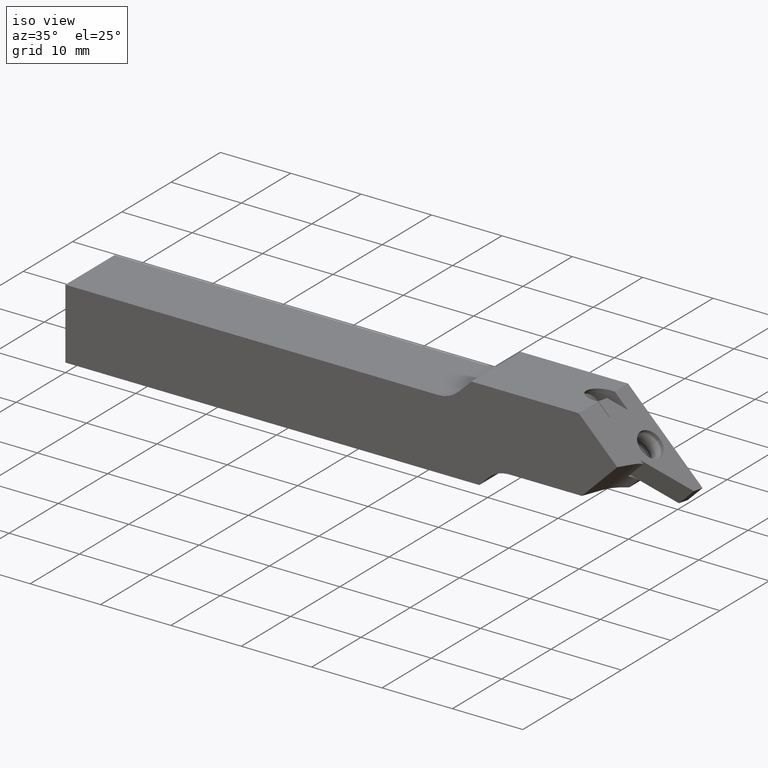
[diagram: clean part render]
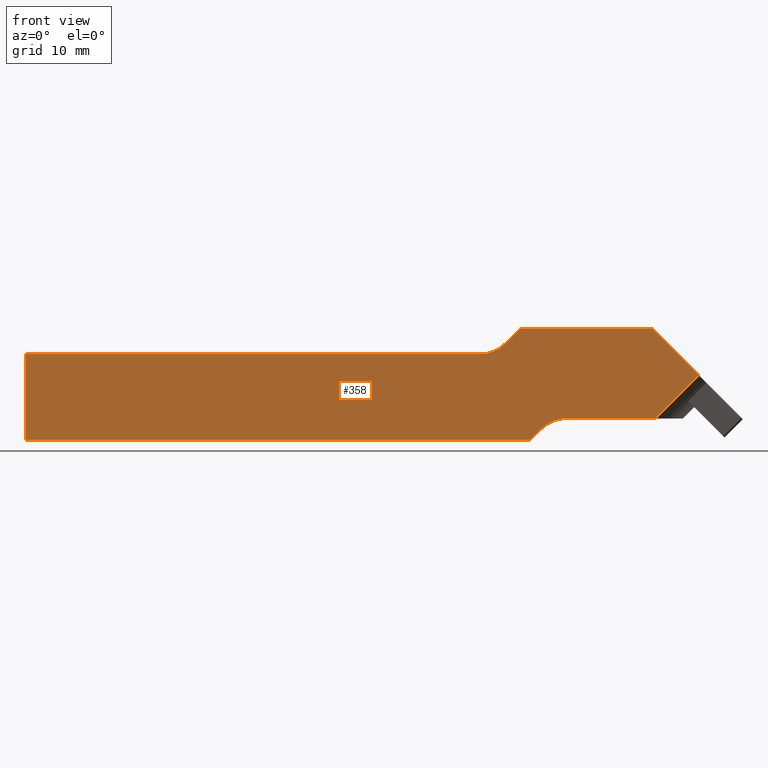
[diagram: tour spotlight — one face highlighted and labeled with its STEP entity id]
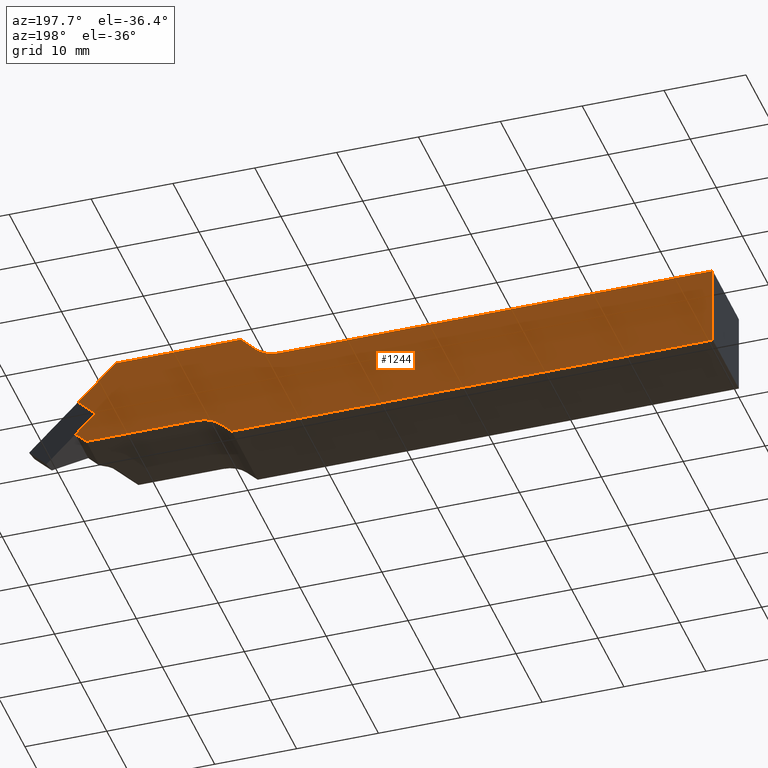
[diagram: tour spotlight — one face highlighted and labeled with its STEP entity id]
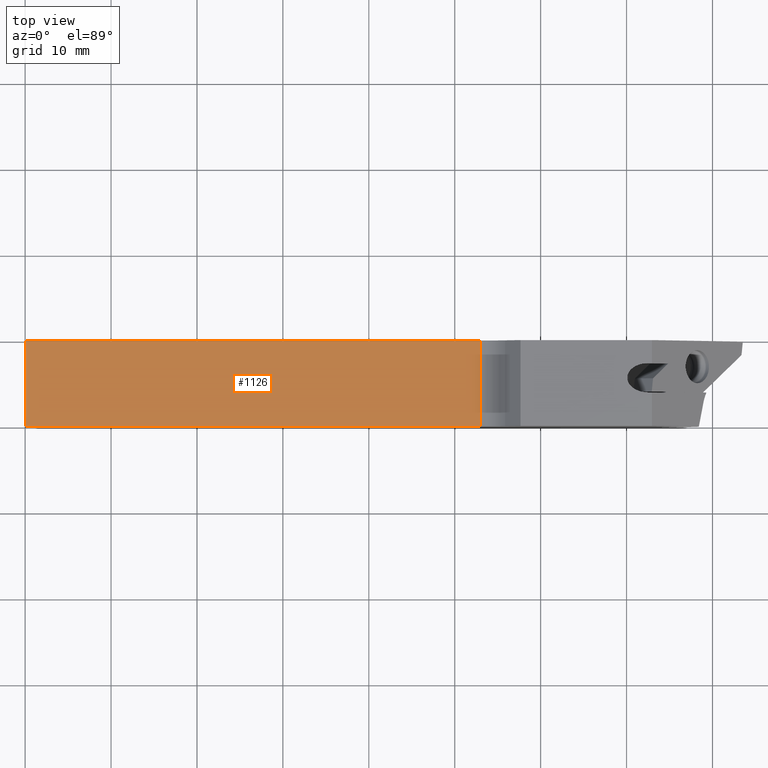
[diagram: tour spotlight — one face highlighted and labeled with its STEP entity id]
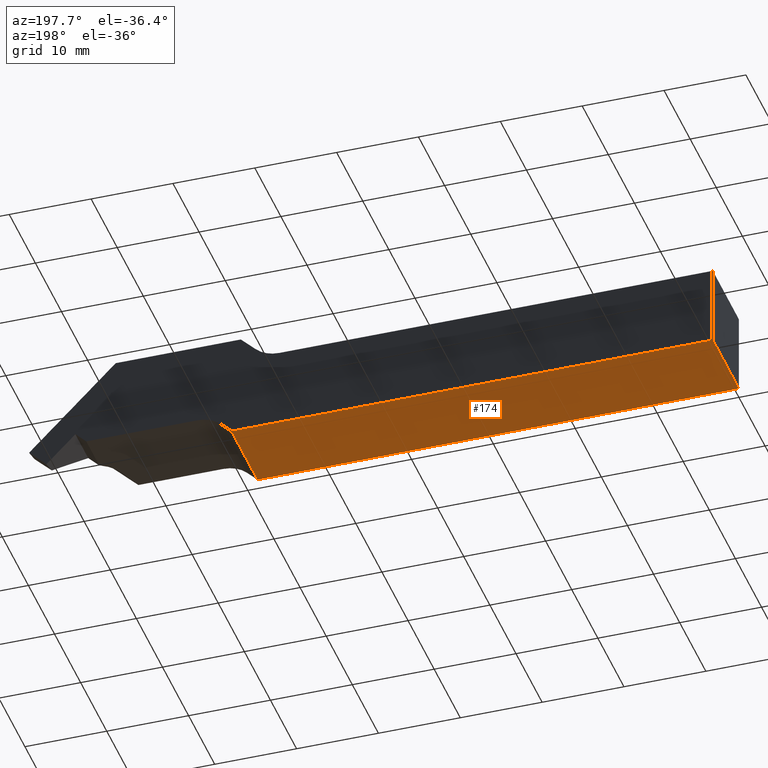
[diagram: tour spotlight — one face highlighted and labeled with its STEP entity id]
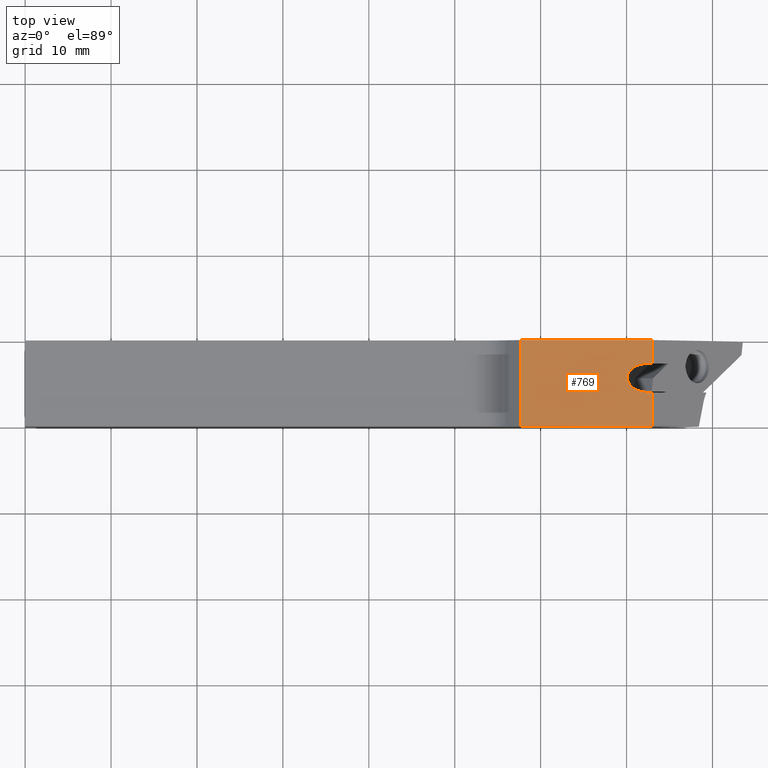
[diagram: tour spotlight — one face highlighted and labeled with its STEP entity id]
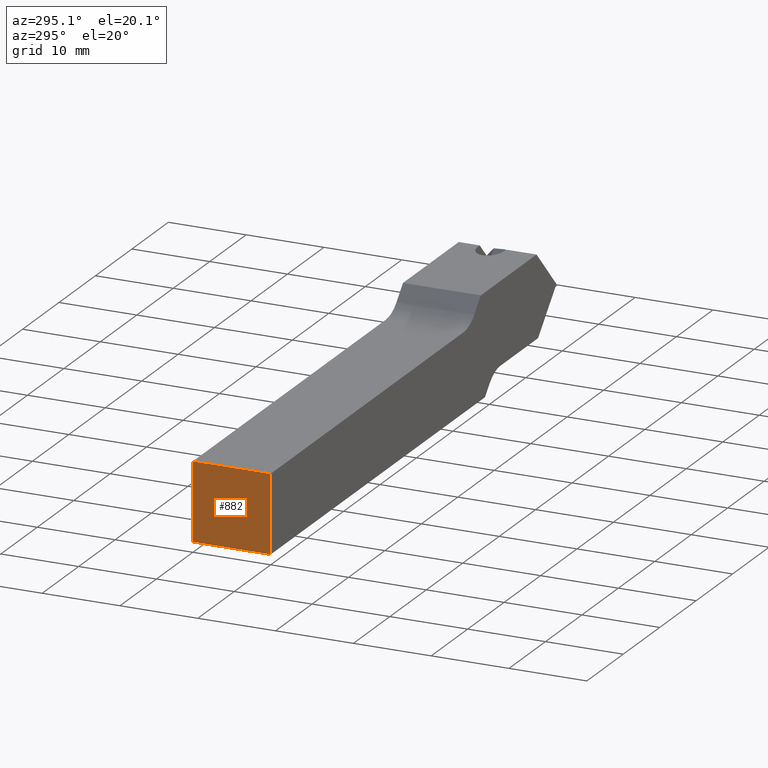
[diagram: tour spotlight — one face highlighted and labeled with its STEP entity id]
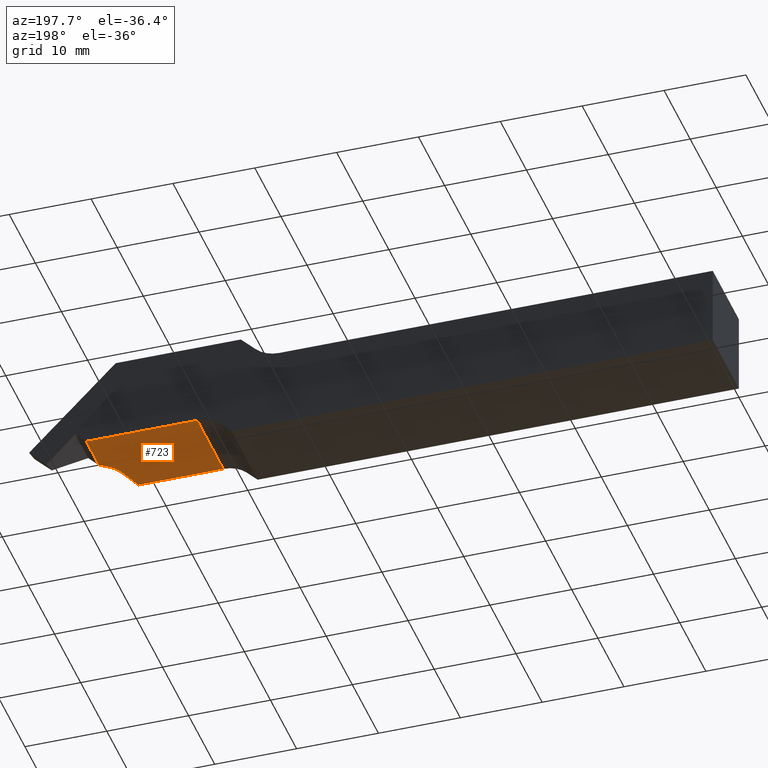
[diagram: tour spotlight — one face highlighted and labeled with its STEP entity id]
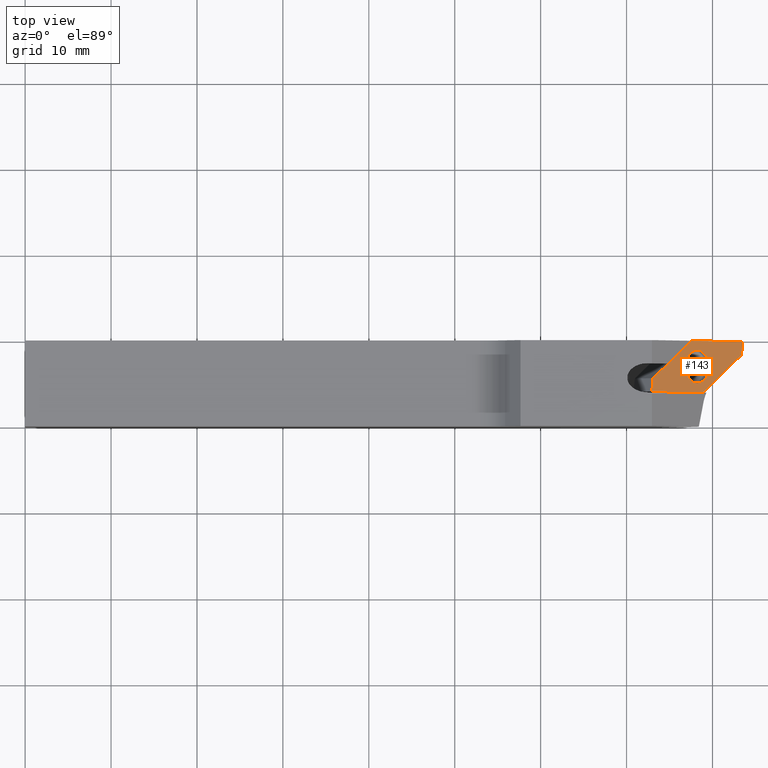
[diagram: tour spotlight — one face highlighted and labeled with its STEP entity id]
A machine part: a face-by-face anatomy tour. The part has 42 B-rep faces; the first image is the clean iso view, then the 8 largest visible faces are spotlighted one at a time (largest first), each with its STEP entity span.

Face 1 — front view, entity #358. In plain terms, the highlighted planar face has unit normal (0, 1, 0).
Definition (entity closure, byte-faithful):
#4 = DIRECTION ( 'NONE',  ( 0.000000000000000000, 1.000000000000000000, 0.000000000000000000 ) ) ;
#13 = CARTESIAN_POINT ( 'NONE',  ( 58.80172439427030184, 0.000000000000000000, 0.000000000000000000 ) ) ;
#23 = EDGE_CURVE ( 'NONE', #878, #734, #362, .T. ) ;
#29 = DIRECTION ( 'NONE',  ( -0.7071067811865487940, 0.000000000000000000, 0.7071067811865463515 ) ) ;
#36 = LINE ( 'NONE', #973, #183 ) ;
#41 = VERTEX_POINT ( 'NONE', #1003 ) ;
#43 = ORIENTED_EDGE ( 'NONE', *, *, #595, .F. ) ;
#65 = DIRECTION ( 'NONE',  ( 0.000000000000000000, -0.000000000000000000, 1.000000000000000000 ) ) ;
#71 = CARTESIAN_POINT ( 'NONE',  ( 0.000000000000000000, 0.000000000000000000, 0.000000000000000000 ) ) ;
#89 = ORIENTED_EDGE ( 'NONE', *, *, #619, .T. ) ;
#97 = CARTESIAN_POINT ( 'NONE',  ( 63.00000000000000000, 0.000000000000000000, 12.99999999999999112 ) ) ;
#98 = CARTESIAN_POINT ( 'NONE',  ( 52.96131316480964557, 0.000000000000000000, 9.999999999999998224 ) ) ;
#102 = VECTOR ( 'NONE', #29, 1000.000000000000000 ) ;
#108 = DIRECTION ( 'NONE',  ( -1.000000000000000000, 0.000000000000000000, 0.000000000000000000 ) ) ;
#134 = CARTESIAN_POINT ( 'NONE',  ( 72.95000000000001705, 0.000000000000000000, 12.99999999999999112 ) ) ;
#140 = EDGE_CURVE ( 'NONE', #1116, #1184, #280, .T. ) ;
#151 = LINE ( 'NONE', #886, #496 ) ;
#183 = VECTOR ( 'NONE', #780, 1000.000000000000000 ) ;
#208 = AXIS2_PLACEMENT_3D ( 'NONE', #370, #789, #584 ) ;
#217 = DIRECTION ( 'NONE',  ( -1.000000000000000000, 0.000000000000000000, 3.173685560019792165E-17 ) ) ;
#228 = ORIENTED_EDGE ( 'NONE', *, *, #23, .T. ) ;
#235 = VECTOR ( 'NONE', #1046, 1000.000000000000000 ) ;
#245 = VERTEX_POINT ( 'NONE', #759 ) ;
#247 = DIRECTION ( 'NONE',  ( -0.7071067811865465735, 0.000000000000000000, -0.7071067811865485719 ) ) ;
#250 = ORIENTED_EDGE ( 'NONE', *, *, #140, .T. ) ;
#259 = PLANE ( 'NONE',  #870 ) ;
#265 = EDGE_CURVE ( 'NONE', #1040, #245, #151, .T. ) ;
#278 = CARTESIAN_POINT ( 'NONE',  ( 60.10086219713516442, 0.000000000000000000, 1.299137802864853697 ) ) ;
#280 = LINE ( 'NONE', #1255, #385 ) ;
#298 = EDGE_CURVE ( 'NONE', #734, #245, #36, .T. ) ;
#305 = CARTESIAN_POINT ( 'NONE',  ( 0.000000000000000000, 0.000000000000000000, 10.00000000000000000 ) ) ;
#340 = EDGE_LOOP ( 'NONE', ( #1199, #952, #638, #1220, #89, #250, #419, #665, #43, #228, #674 ) ) ;
#358 = ADVANCED_FACE ( 'NONE', ( #1118 ), #259, .F. ) ;
#362 = CIRCLE ( 'NONE', #208, 4.100000000000003197 ) ;
#370 = CARTESIAN_POINT ( 'NONE',  ( 63.00000000000000000, 0.000000000000000000, -1.600000000000012967 ) ) ;
#371 = VERTEX_POINT ( 'NONE', #507 ) ;
#384 = DIRECTION ( 'NONE',  ( 1.000000000000000000, 0.000000000000000000, 0.000000000000000000 ) ) ;
#385 = VECTOR ( 'NONE', #217, 1000.000000000000000 ) ;
#413 = DIRECTION ( 'NONE',  ( 0.000000000000000000, 0.000000000000000000, 1.000000000000000000 ) ) ;
#419 = ORIENTED_EDGE ( 'NONE', *, *, #446, .F. ) ;
#446 = EDGE_CURVE ( 'NONE', #857, #1184, #1015, .T. ) ;
#487 = CARTESIAN_POINT ( 'NONE',  ( 63.00000000000000000, 0.000000000000000000, 2.499999999999990230 ) ) ;
#488 = DIRECTION ( 'NONE',  ( 1.224646799147353207E-16, 0.000000000000000000, 1.000000000000000000 ) ) ;
#496 = VECTOR ( 'NONE', #247, 1000.000000000000000 ) ;
#507 = CARTESIAN_POINT ( 'NONE',  ( 57.65958877053932241, 0.000000000000000000, 12.99999999999999112 ) ) ;
#526 = CARTESIAN_POINT ( 'NONE',  ( 52.96131316480964557, 0.000000000000000000, 14.09999999999999787 ) ) ;
#541 = EDGE_CURVE ( 'NONE', #1079, #371, #1042, .T. ) ;
#547 = CARTESIAN_POINT ( 'NONE',  ( 80.00000000000000000, 0.000000000000000000, 5.950000000000000178 ) ) ;
#568 = VECTOR ( 'NONE', #108, 1000.000000000000000 ) ;
#584 = DIRECTION ( 'NONE',  ( 0.000000000000000000, 0.000000000000000000, 1.000000000000000000 ) ) ;
#595 = EDGE_CURVE ( 'NONE', #878, #986, #938, .T. ) ;
#606 = VECTOR ( 'NONE', #488, 1000.000000000000000 ) ;
#608 = VECTOR ( 'NONE', #384, 1000.000000000000000 ) ;
#619 = EDGE_CURVE ( 'NONE', #41, #1116, #822, .T. ) ;
#638 = ORIENTED_EDGE ( 'NONE', *, *, #541, .T. ) ;
#641 = EDGE_CURVE ( 'NONE', #1040, #1079, #879, .T. ) ;
#665 = ORIENTED_EDGE ( 'NONE', *, *, #753, .T. ) ;
#674 = ORIENTED_EDGE ( 'NONE', *, *, #298, .T. ) ;
#676 = LINE ( 'NONE', #853, #1192 ) ;
#707 = EDGE_CURVE ( 'NONE', #371, #41, #676, .T. ) ;
#734 = VERTEX_POINT ( 'NONE', #487 ) ;
#753 = EDGE_CURVE ( 'NONE', #857, #986, #1310, .T. ) ;
#759 = CARTESIAN_POINT ( 'NONE',  ( 73.37399870750100206, 9.901893260042758886E-17, 2.499999999999974243 ) ) ;
#766 = DIRECTION ( 'NONE',  ( -0.7071067811865463515, 0.000000000000000000, -0.7071067811865487940 ) ) ;
#780 = DIRECTION ( 'NONE',  ( 1.000000000000000000, 0.000000000000000000, 0.000000000000000000 ) ) ;
#789 = DIRECTION ( 'NONE',  ( 0.000000000000000000, 1.000000000000000000, 0.000000000000000000 ) ) ;
#822 = CIRCLE ( 'NONE', #823, 4.099999999999999645 ) ;
#823 = AXIS2_PLACEMENT_3D ( 'NONE', #526, #4, #413 ) ;
#853 = CARTESIAN_POINT ( 'NONE',  ( 53.02979438526965339, 0.000000000000000000, 8.370205614730304333 ) ) ;
#857 = VERTEX_POINT ( 'NONE', #1299 ) ;
#870 = AXIS2_PLACEMENT_3D ( 'NONE', #1008, #893, #65 ) ;
#878 = VERTEX_POINT ( 'NONE', #278 ) ;
#879 = LINE ( 'NONE', #547, #102 ) ;
#886 = CARTESIAN_POINT ( 'NONE',  ( 66.13699935375048256, 0.000000000000000000, -4.736999353750487529 ) ) ;
#893 = DIRECTION ( 'NONE',  ( 0.000000000000000000, 1.000000000000000000, 0.000000000000000000 ) ) ;
#938 = LINE ( 'NONE', #1153, #235 ) ;
#952 = ORIENTED_EDGE ( 'NONE', *, *, #641, .T. ) ;
#973 = CARTESIAN_POINT ( 'NONE',  ( 63.00000000000000000, 0.000000000000000000, 2.499999999999986677 ) ) ;
#986 = VERTEX_POINT ( 'NONE', #13 ) ;
#1003 = CARTESIAN_POINT ( 'NONE',  ( 55.86045096767449536, 0.000000000000000000, 11.20086219713515518 ) ) ;
#1008 = CARTESIAN_POINT ( 'NONE',  ( 63.00000000000000000, 0.000000000000000000, -1.600000000000012967 ) ) ;
#1015 = LINE ( 'NONE', #71, #606 ) ;
#1040 = VERTEX_POINT ( 'NONE', #1056 ) ;
#1042 = LINE ( 'NONE', #97, #568 ) ;
#1046 = DIRECTION ( 'NONE',  ( -0.7071067811865502373, 0.000000000000000000, -0.7071067811865447972 ) ) ;
#1056 = CARTESIAN_POINT ( 'NONE',  ( 78.41199935375051666, 9.901893260042758886E-17, 7.538000646249515491 ) ) ;
#1079 = VERTEX_POINT ( 'NONE', #134 ) ;
#1116 = VERTEX_POINT ( 'NONE', #98 ) ;
#1118 = FACE_OUTER_BOUND ( 'NONE', #340, .T. ) ;
#1153 = CARTESIAN_POINT ( 'NONE',  ( 60.10086219713516442, 0.000000000000000000, 1.299137802864853697 ) ) ;
#1184 = VERTEX_POINT ( 'NONE', #305 ) ;
#1192 = VECTOR ( 'NONE', #766, 1000.000000000000000 ) ;
#1199 = ORIENTED_EDGE ( 'NONE', *, *, #265, .F. ) ;
#1206 = CARTESIAN_POINT ( 'NONE',  ( 0.000000000000000000, 0.000000000000000000, 0.000000000000000000 ) ) ;
#1220 = ORIENTED_EDGE ( 'NONE', *, *, #707, .T. ) ;
#1255 = CARTESIAN_POINT ( 'NONE',  ( 63.00000000000000000, 0.000000000000000000, 9.999999999999998224 ) ) ;
#1299 = CARTESIAN_POINT ( 'NONE',  ( 0.000000000000000000, 0.000000000000000000, 0.000000000000000000 ) ) ;
#1310 = LINE ( 'NONE', #1206, #608 ) ;

Face 2 — auxiliary view, entity #1244. In plain terms, the highlighted planar face has unit normal (0, 1, 0).
Definition (entity closure, byte-faithful):
#5 = CARTESIAN_POINT ( 'NONE',  ( 75.44206296832528835, 10.00000000000000178, 6.265296344555445707 ) ) ;
#37 = EDGE_CURVE ( 'NONE', #349, #643, #459, .T. ) ;
#48 = CARTESIAN_POINT ( 'NONE',  ( 80.00000000000000000, 10.00000000000000000, 5.950000000000000178 ) ) ;
#50 = CARTESIAN_POINT ( 'NONE',  ( 55.86045096767449536, 10.00000000000000000, 11.20086219713515518 ) ) ;
#52 = ORIENTED_EDGE ( 'NONE', *, *, #585, .F. ) ;
#68 = ORIENTED_EDGE ( 'NONE', *, *, #1281, .T. ) ;
#73 = LINE ( 'NONE', #5, #843 ) ;
#92 = PLANE ( 'NONE',  #148 ) ;
#93 = EDGE_CURVE ( 'NONE', #643, #404, #224, .T. ) ;
#114 = CARTESIAN_POINT ( 'NONE',  ( 77.87867965644038293, 10.00000000000000000, 3.828679656440378221 ) ) ;
#116 = DIRECTION ( 'NONE',  ( 1.000000000000000000, 0.000000000000000000, 0.000000000000000000 ) ) ;
#121 = ORIENTED_EDGE ( 'NONE', *, *, #93, .F. ) ;
#148 = AXIS2_PLACEMENT_3D ( 'NONE', #1148, #1053, #515 ) ;
#149 = VERTEX_POINT ( 'NONE', #114 ) ;
#152 = ORIENTED_EDGE ( 'NONE', *, *, #705, .F. ) ;
#158 = EDGE_CURVE ( 'NONE', #681, #1194, #854, .T. ) ;
#164 = DIRECTION ( 'NONE',  ( -0.7071067811865487940, 0.000000000000000000, 0.7071067811865463515 ) ) ;
#171 = DIRECTION ( 'NONE',  ( 1.000000000000000000, 0.000000000000000000, 0.000000000000000000 ) ) ;
#176 = EDGE_CURVE ( 'NONE', #1224, #149, #624, .T. ) ;
#187 = VECTOR ( 'NONE', #1278, 1000.000000000000000 ) ;
#195 = EDGE_CURVE ( 'NONE', #772, #349, #73, .T. ) ;
#220 = CARTESIAN_POINT ( 'NONE',  ( 52.96131316480964557, 9.999999999999994671, 14.09999999999999787 ) ) ;
#224 = LINE ( 'NONE', #329, #519 ) ;
#234 = LINE ( 'NONE', #251, #187 ) ;
#239 = VERTEX_POINT ( 'NONE', #1166 ) ;
#240 = DIRECTION ( 'NONE',  ( -0.000000000000000000, -1.000000000000000000, -0.000000000000000000 ) ) ;
#251 = CARTESIAN_POINT ( 'NONE',  ( 77.87867965644038293, 10.00000000000000000, 3.828679656440378221 ) ) ;
#273 = AXIS2_PLACEMENT_3D ( 'NONE', #220, #240, #1063 ) ;
#281 = VERTEX_POINT ( 'NONE', #578 ) ;
#284 = VERTEX_POINT ( 'NONE', #994 ) ;
#286 = EDGE_CURVE ( 'NONE', #281, #239, #1083, .T. ) ;
#300 = ORIENTED_EDGE ( 'NONE', *, *, #996, .T. ) ;
#313 = VECTOR ( 'NONE', #164, 1000.000000000000000 ) ;
#314 = VERTEX_POINT ( 'NONE', #1287 ) ;
#323 = DIRECTION ( 'NONE',  ( 0.7071067811865462405, -0.000000000000000000, 0.7071067811865487940 ) ) ;
#324 = CARTESIAN_POINT ( 'NONE',  ( 58.80172439427030184, 10.00000000000000000, 0.000000000000000000 ) ) ;
#329 = CARTESIAN_POINT ( 'NONE',  ( 63.00000000000000000, 10.00000000000000000, 12.99999999999999112 ) ) ;
#343 = CARTESIAN_POINT ( 'NONE',  ( 63.00000000000000000, 10.00000000000000000, 9.999999999999998224 ) ) ;
#349 = VERTEX_POINT ( 'NONE', #695 ) ;
#355 = DIRECTION ( 'NONE',  ( -0.7071067811865463515, 0.000000000000000000, -0.7071067811865487940 ) ) ;
#356 = CARTESIAN_POINT ( 'NONE',  ( 60.10086219713516442, 10.00000000000000000, 1.299137802864853697 ) ) ;
#388 = EDGE_CURVE ( 'NONE', #681, #239, #604, .T. ) ;
#404 = VERTEX_POINT ( 'NONE', #1202 ) ;
#439 = CARTESIAN_POINT ( 'NONE',  ( 0.000000000000000000, 10.00000000000000000, 0.000000000000000000 ) ) ;
#453 = LINE ( 'NONE', #461, #1296 ) ;
#459 = LINE ( 'NONE', #48, #313 ) ;
#461 = CARTESIAN_POINT ( 'NONE',  ( 53.02979438526965339, 10.00000000000000000, 8.370205614730304333 ) ) ;
#500 = CIRCLE ( 'NONE', #1026, 4.100000000000003197 ) ;
#501 = DIRECTION ( 'NONE',  ( -1.000000000000000000, 0.000000000000000000, 0.000000000000000000 ) ) ;
#515 = DIRECTION ( 'NONE',  ( 0.000000000000000000, -0.000000000000000000, 1.000000000000000000 ) ) ;
#519 = VECTOR ( 'NONE', #501, 1000.000000000000000 ) ;
#546 = ORIENTED_EDGE ( 'NONE', *, *, #195, .F. ) ;
#551 = CARTESIAN_POINT ( 'NONE',  ( 63.00000000000000000, 10.00000000000000000, 2.499999999999986677 ) ) ;
#578 = CARTESIAN_POINT ( 'NONE',  ( 52.96131316480964557, 10.00000000000000000, 9.999999999999998224 ) ) ;
#585 = EDGE_CURVE ( 'NONE', #314, #284, #500, .T. ) ;
#604 = LINE ( 'NONE', #683, #1294 ) ;
#609 = VECTOR ( 'NONE', #116, 1000.000000000000000 ) ;
#623 = DIRECTION ( 'NONE',  ( 0.000000000000000000, 0.000000000000000000, 1.000000000000000000 ) ) ;
#624 = LINE ( 'NONE', #1048, #1047 ) ;
#643 = VERTEX_POINT ( 'NONE', #1082 ) ;
#659 = LINE ( 'NONE', #551, #609 ) ;
#669 = EDGE_CURVE ( 'NONE', #404, #852, #453, .T. ) ;
#681 = VERTEX_POINT ( 'NONE', #439 ) ;
#683 = CARTESIAN_POINT ( 'NONE',  ( 0.000000000000000000, 10.00000000000000000, 0.000000000000000000 ) ) ;
#693 = CARTESIAN_POINT ( 'NONE',  ( 75.44206296832528835, 10.00000000000000178, 6.265296344555445707 ) ) ;
#695 = CARTESIAN_POINT ( 'NONE',  ( 77.56338331188491964, 10.00000000000000178, 8.386616688115092089 ) ) ;
#705 = EDGE_CURVE ( 'NONE', #149, #772, #234, .T. ) ;
#746 = CARTESIAN_POINT ( 'NONE',  ( 63.00000000000000000, 10.00000000000000000, -1.600000000000012967 ) ) ;
#747 = DIRECTION ( 'NONE',  ( 0.7071067811865455743, 0.000000000000000000, 0.7071067811865493491 ) ) ;
#756 = ORIENTED_EDGE ( 'NONE', *, *, #669, .F. ) ;
#767 = VECTOR ( 'NONE', #990, 1000.000000000000000 ) ;
#772 = VERTEX_POINT ( 'NONE', #693 ) ;
#817 = ORIENTED_EDGE ( 'NONE', *, *, #1321, .F. ) ;
#843 = VECTOR ( 'NONE', #323, 1000.000000000000227 ) ;
#852 = VERTEX_POINT ( 'NONE', #50 ) ;
#854 = LINE ( 'NONE', #1111, #1002 ) ;
#876 = LINE ( 'NONE', #356, #767 ) ;
#892 = CIRCLE ( 'NONE', #273, 4.099999999999999645 ) ;
#898 = ORIENTED_EDGE ( 'NONE', *, *, #286, .F. ) ;
#962 = ORIENTED_EDGE ( 'NONE', *, *, #388, .T. ) ;
#983 = VECTOR ( 'NONE', #1292, 1000.000000000000000 ) ;
#990 = DIRECTION ( 'NONE',  ( -0.7071067811865502373, 0.000000000000000000, -0.7071067811865447972 ) ) ;
#994 = CARTESIAN_POINT ( 'NONE',  ( 63.00000000000000000, 10.00000000000000000, 2.499999999999990230 ) ) ;
#996 = EDGE_CURVE ( 'NONE', #281, #852, #892, .T. ) ;
#1002 = VECTOR ( 'NONE', #171, 1000.000000000000000 ) ;
#1011 = EDGE_LOOP ( 'NONE', ( #546, #152, #1297, #817, #52, #68, #1080, #962, #898, #300, #756, #121, #1315 ) ) ;
#1026 = AXIS2_PLACEMENT_3D ( 'NONE', #746, #1328, #623 ) ;
#1047 = VECTOR ( 'NONE', #747, 1000.000000000000114 ) ;
#1048 = CARTESIAN_POINT ( 'NONE',  ( 76.55000000000001137, 10.00000000000000000, 2.499999999999986677 ) ) ;
#1053 = DIRECTION ( 'NONE',  ( 0.000000000000000000, 1.000000000000000000, 0.000000000000000000 ) ) ;
#1063 = DIRECTION ( 'NONE',  ( -1.692413147294446167E-15, 0.000000000000000000, 1.000000000000000000 ) ) ;
#1080 = ORIENTED_EDGE ( 'NONE', *, *, #158, .F. ) ;
#1082 = CARTESIAN_POINT ( 'NONE',  ( 72.95000000000001705, 9.999999999999994671, 12.99999999999999112 ) ) ;
#1083 = LINE ( 'NONE', #343, #983 ) ;
#1102 = DIRECTION ( 'NONE',  ( 1.224646799147353207E-16, 0.000000000000000000, 1.000000000000000000 ) ) ;
#1111 = CARTESIAN_POINT ( 'NONE',  ( 0.000000000000000000, 10.00000000000000000, 0.000000000000000000 ) ) ;
#1128 = FACE_OUTER_BOUND ( 'NONE', #1011, .T. ) ;
#1148 = CARTESIAN_POINT ( 'NONE',  ( 63.00000000000000000, 10.00000000000000000, -1.600000000000012967 ) ) ;
#1166 = CARTESIAN_POINT ( 'NONE',  ( 0.000000000000000000, 9.999999999999994671, 10.00000000000000000 ) ) ;
#1194 = VERTEX_POINT ( 'NONE', #324 ) ;
#1202 = CARTESIAN_POINT ( 'NONE',  ( 57.65958877053932241, 9.999999999999994671, 12.99999999999999112 ) ) ;
#1224 = VERTEX_POINT ( 'NONE', #1325 ) ;
#1244 = ADVANCED_FACE ( 'NONE', ( #1128 ), #92, .T. ) ;
#1278 = DIRECTION ( 'NONE',  ( -0.7071067811865515695, 5.034171929174464717E-16, 0.7071067811865435759 ) ) ;
#1281 = EDGE_CURVE ( 'NONE', #314, #1194, #876, .T. ) ;
#1287 = CARTESIAN_POINT ( 'NONE',  ( 60.10086219713516442, 10.00000000000000000, 1.299137802864853697 ) ) ;
#1292 = DIRECTION ( 'NONE',  ( -1.000000000000000000, 0.000000000000000000, 3.173685560019792165E-17 ) ) ;
#1294 = VECTOR ( 'NONE', #1102, 1000.000000000000000 ) ;
#1296 = VECTOR ( 'NONE', #355, 1000.000000000000000 ) ;
#1297 = ORIENTED_EDGE ( 'NONE', *, *, #176, .F. ) ;
#1315 = ORIENTED_EDGE ( 'NONE', *, *, #37, .F. ) ;
#1321 = EDGE_CURVE ( 'NONE', #284, #1224, #659, .T. ) ;
#1325 = CARTESIAN_POINT ( 'NONE',  ( 76.55000000000001137, 10.00000000000000000, 2.499999999999986677 ) ) ;
#1328 = DIRECTION ( 'NONE',  ( 0.000000000000000000, 1.000000000000000000, 0.000000000000000000 ) ) ;

Face 3 — top view, entity #1126. In plain terms, the highlighted planar face has unit normal (-0, 0, -1).
Definition (entity closure, byte-faithful):
#24 = ORIENTED_EDGE ( 'NONE', *, *, #96, .T. ) ;
#96 = EDGE_CURVE ( 'NONE', #1116, #281, #310, .T. ) ;
#98 = CARTESIAN_POINT ( 'NONE',  ( 52.96131316480964557, 0.000000000000000000, 9.999999999999998224 ) ) ;
#140 = EDGE_CURVE ( 'NONE', #1116, #1184, #280, .T. ) ;
#169 = DIRECTION ( 'NONE',  ( 0.000000000000000000, -1.000000000000000000, 0.000000000000000000 ) ) ;
#200 = FACE_OUTER_BOUND ( 'NONE', #1129, .T. ) ;
#217 = DIRECTION ( 'NONE',  ( -1.000000000000000000, 0.000000000000000000, 3.173685560019792165E-17 ) ) ;
#239 = VERTEX_POINT ( 'NONE', #1166 ) ;
#268 = CARTESIAN_POINT ( 'NONE',  ( 0.000000000000000000, 131.1583665669606660, 10.00000000000000000 ) ) ;
#270 = VECTOR ( 'NONE', #539, 1000.000000000000000 ) ;
#280 = LINE ( 'NONE', #1255, #385 ) ;
#281 = VERTEX_POINT ( 'NONE', #578 ) ;
#286 = EDGE_CURVE ( 'NONE', #281, #239, #1083, .T. ) ;
#305 = CARTESIAN_POINT ( 'NONE',  ( 0.000000000000000000, 0.000000000000000000, 10.00000000000000000 ) ) ;
#310 = LINE ( 'NONE', #1052, #270 ) ;
#318 = ORIENTED_EDGE ( 'NONE', *, *, #140, .F. ) ;
#343 = CARTESIAN_POINT ( 'NONE',  ( 63.00000000000000000, 10.00000000000000000, 9.999999999999998224 ) ) ;
#385 = VECTOR ( 'NONE', #217, 1000.000000000000000 ) ;
#520 = PLANE ( 'NONE',  #1275 ) ;
#539 = DIRECTION ( 'NONE',  ( -0.000000000000000000, 1.000000000000000000, -0.000000000000000000 ) ) ;
#578 = CARTESIAN_POINT ( 'NONE',  ( 52.96131316480964557, 10.00000000000000000, 9.999999999999998224 ) ) ;
#618 = DIRECTION ( 'NONE',  ( -1.000000000000000000, 0.000000000000000000, 3.173685560019792165E-17 ) ) ;
#733 = EDGE_CURVE ( 'NONE', #239, #1184, #1096, .T. ) ;
#837 = CARTESIAN_POINT ( 'NONE',  ( 0.000000000000000000, 131.1583665669606660, 10.00000000000000000 ) ) ;
#983 = VECTOR ( 'NONE', #1292, 1000.000000000000000 ) ;
#992 = ORIENTED_EDGE ( 'NONE', *, *, #733, .T. ) ;
#1052 = CARTESIAN_POINT ( 'NONE',  ( 52.96131316480964557, 9.999999999999994671, 9.999999999999998224 ) ) ;
#1083 = LINE ( 'NONE', #343, #983 ) ;
#1096 = LINE ( 'NONE', #268, #1256 ) ;
#1116 = VERTEX_POINT ( 'NONE', #98 ) ;
#1126 = ADVANCED_FACE ( 'NONE', ( #200 ), #520, .F. ) ;
#1129 = EDGE_LOOP ( 'NONE', ( #318, #24, #1173, #992 ) ) ;
#1154 = DIRECTION ( 'NONE',  ( -3.173685560019792165E-17, 0.000000000000000000, -1.000000000000000000 ) ) ;
#1166 = CARTESIAN_POINT ( 'NONE',  ( 0.000000000000000000, 9.999999999999994671, 10.00000000000000000 ) ) ;
#1173 = ORIENTED_EDGE ( 'NONE', *, *, #286, .T. ) ;
#1184 = VERTEX_POINT ( 'NONE', #305 ) ;
#1255 = CARTESIAN_POINT ( 'NONE',  ( 63.00000000000000000, 0.000000000000000000, 9.999999999999998224 ) ) ;
#1256 = VECTOR ( 'NONE', #169, 1000.000000000000000 ) ;
#1275 = AXIS2_PLACEMENT_3D ( 'NONE', #837, #1154, #618 ) ;
#1292 = DIRECTION ( 'NONE',  ( -1.000000000000000000, 0.000000000000000000, 3.173685560019792165E-17 ) ) ;

Face 4 — auxiliary view, entity #174. In plain terms, the highlighted planar face has unit normal (0, 0, -1).
Definition (entity closure, byte-faithful):
#13 = CARTESIAN_POINT ( 'NONE',  ( 58.80172439427030184, 0.000000000000000000, 0.000000000000000000 ) ) ;
#109 = DIRECTION ( 'NONE',  ( 0.000000000000000000, 0.000000000000000000, -1.000000000000000000 ) ) ;
#112 = ORIENTED_EDGE ( 'NONE', *, *, #851, .F. ) ;
#146 = LINE ( 'NONE', #881, #1193 ) ;
#158 = EDGE_CURVE ( 'NONE', #681, #1194, #854, .T. ) ;
#171 = DIRECTION ( 'NONE',  ( 1.000000000000000000, 0.000000000000000000, 0.000000000000000000 ) ) ;
#174 = ADVANCED_FACE ( 'NONE', ( #634 ), #597, .T. ) ;
#205 = CARTESIAN_POINT ( 'NONE',  ( 0.000000000000000000, 10.00000000000000000, 0.000000000000000000 ) ) ;
#221 = EDGE_LOOP ( 'NONE', ( #943, #112, #903, #1267 ) ) ;
#324 = CARTESIAN_POINT ( 'NONE',  ( 58.80172439427030184, 10.00000000000000000, 0.000000000000000000 ) ) ;
#384 = DIRECTION ( 'NONE',  ( 1.000000000000000000, 0.000000000000000000, 0.000000000000000000 ) ) ;
#439 = CARTESIAN_POINT ( 'NONE',  ( 0.000000000000000000, 10.00000000000000000, 0.000000000000000000 ) ) ;
#594 = CARTESIAN_POINT ( 'NONE',  ( 0.000000000000000000, 10.00000000000000000, 0.000000000000000000 ) ) ;
#597 = PLANE ( 'NONE',  #912 ) ;
#599 = DIRECTION ( 'NONE',  ( -0.000000000000000000, -1.000000000000000000, -0.000000000000000000 ) ) ;
#608 = VECTOR ( 'NONE', #384, 1000.000000000000000 ) ;
#634 = FACE_OUTER_BOUND ( 'NONE', #221, .T. ) ;
#681 = VERTEX_POINT ( 'NONE', #439 ) ;
#682 = LINE ( 'NONE', #594, #1170 ) ;
#753 = EDGE_CURVE ( 'NONE', #857, #986, #1310, .T. ) ;
#851 = EDGE_CURVE ( 'NONE', #681, #857, #682, .T. ) ;
#854 = LINE ( 'NONE', #1111, #1002 ) ;
#857 = VERTEX_POINT ( 'NONE', #1299 ) ;
#881 = CARTESIAN_POINT ( 'NONE',  ( 58.80172439427030184, 10.00000000000000000, 0.000000000000000000 ) ) ;
#903 = ORIENTED_EDGE ( 'NONE', *, *, #158, .T. ) ;
#912 = AXIS2_PLACEMENT_3D ( 'NONE', #205, #109, #1017 ) ;
#943 = ORIENTED_EDGE ( 'NONE', *, *, #753, .F. ) ;
#986 = VERTEX_POINT ( 'NONE', #13 ) ;
#1002 = VECTOR ( 'NONE', #171, 1000.000000000000000 ) ;
#1017 = DIRECTION ( 'NONE',  ( -1.000000000000000000, 0.000000000000000000, -0.000000000000000000 ) ) ;
#1111 = CARTESIAN_POINT ( 'NONE',  ( 0.000000000000000000, 10.00000000000000000, 0.000000000000000000 ) ) ;
#1170 = VECTOR ( 'NONE', #599, 1000.000000000000000 ) ;
#1193 = VECTOR ( 'NONE', #1288, 1000.000000000000000 ) ;
#1194 = VERTEX_POINT ( 'NONE', #324 ) ;
#1206 = CARTESIAN_POINT ( 'NONE',  ( 0.000000000000000000, 0.000000000000000000, 0.000000000000000000 ) ) ;
#1267 = ORIENTED_EDGE ( 'NONE', *, *, #1302, .T. ) ;
#1288 = DIRECTION ( 'NONE',  ( -0.000000000000000000, -1.000000000000000000, -0.000000000000000000 ) ) ;
#1299 = CARTESIAN_POINT ( 'NONE',  ( 0.000000000000000000, 0.000000000000000000, 0.000000000000000000 ) ) ;
#1302 = EDGE_CURVE ( 'NONE', #1194, #986, #146, .T. ) ;
#1310 = LINE ( 'NONE', #1206, #608 ) ;

Face 5 — top view, entity #769. In plain terms, the highlighted planar face has unit normal (0, 0, -1).
Definition (entity closure, byte-faithful):
#10 = DIRECTION ( 'NONE',  ( 0.000000000000000000, -1.000000000000000000, 0.000000000000000000 ) ) ;
#16 = VECTOR ( 'NONE', #1233, 1000.000000000000000 ) ;
#75 = CARTESIAN_POINT ( 'NONE',  ( 57.65958877053932241, 131.1583665669606660, 12.99999999999999112 ) ) ;
#80 = LINE ( 'NONE', #940, #145 ) ;
#93 = EDGE_CURVE ( 'NONE', #643, #404, #224, .T. ) ;
#97 = CARTESIAN_POINT ( 'NONE',  ( 63.00000000000000000, 0.000000000000000000, 12.99999999999999112 ) ) ;
#108 = DIRECTION ( 'NONE',  ( -1.000000000000000000, 0.000000000000000000, 0.000000000000000000 ) ) ;
#131 = CARTESIAN_POINT ( 'NONE',  ( 72.95000000000001705, 7.300000000000014921, 12.99999999999999112 ) ) ;
#134 = CARTESIAN_POINT ( 'NONE',  ( 72.95000000000001705, 0.000000000000000000, 12.99999999999999112 ) ) ;
#137 = EDGE_CURVE ( 'NONE', #959, #796, #640, .T. ) ;
#145 = VECTOR ( 'NONE', #10, 1000.000000000000000 ) ;
#175 = CARTESIAN_POINT ( 'NONE',  ( 72.48360030359656037, 7.300000000000014033, 12.99999999999999112 ) ) ;
#188 = CARTESIAN_POINT ( 'NONE',  ( 72.95000000000001705, 3.900000000000012790, 12.99999999999998934 ) ) ;
#193 = EDGE_CURVE ( 'NONE', #404, #371, #80, .T. ) ;
#224 = LINE ( 'NONE', #329, #519 ) ;
#230 = DIRECTION ( 'NONE',  ( 0.000000000000000000, -1.000000000000000000, 0.000000000000000000 ) ) ;
#243 = EDGE_LOOP ( 'NONE', ( #395, #902, #838, #704, #411, #1112, #1119, #808 ) ) ;
#266 = VERTEX_POINT ( 'NONE', #131 ) ;
#275 = EDGE_CURVE ( 'NONE', #643, #266, #671, .T. ) ;
#282 = FACE_OUTER_BOUND ( 'NONE', #243, .T. ) ;
#294 = EDGE_CURVE ( 'NONE', #796, #745, #1054, .T. ) ;
#329 = CARTESIAN_POINT ( 'NONE',  ( 63.00000000000000000, 10.00000000000000000, 12.99999999999999112 ) ) ;
#371 = VERTEX_POINT ( 'NONE', #507 ) ;
#395 = ORIENTED_EDGE ( 'NONE', *, *, #1069, .F. ) ;
#404 = VERTEX_POINT ( 'NONE', #1202 ) ;
#405 = AXIS2_PLACEMENT_3D ( 'NONE', #75, #688, #1317 ) ;
#411 = ORIENTED_EDGE ( 'NONE', *, *, #275, .F. ) ;
#451 = DIRECTION ( 'NONE',  ( 0.000000000000000000, -1.000000000000000000, 0.000000000000000000 ) ) ;
#501 = DIRECTION ( 'NONE',  ( -1.000000000000000000, 0.000000000000000000, 0.000000000000000000 ) ) ;
#507 = CARTESIAN_POINT ( 'NONE',  ( 57.65958877053932241, 0.000000000000000000, 12.99999999999999112 ) ) ;
#510 = EDGE_CURVE ( 'NONE', #745, #266, #728, .T. ) ;
#519 = VECTOR ( 'NONE', #501, 1000.000000000000000 ) ;
#541 = EDGE_CURVE ( 'NONE', #1079, #371, #1042, .T. ) ;
#568 = VECTOR ( 'NONE', #108, 1000.000000000000000 ) ;
#569 = CARTESIAN_POINT ( 'NONE',  ( 72.48360030359656037, 3.900000000000012790, 12.99999999999999112 ) ) ;
#640 = LINE ( 'NONE', #842, #1023 ) ;
#643 = VERTEX_POINT ( 'NONE', #1082 ) ;
#663 = CARTESIAN_POINT ( 'NONE',  ( 67.67527419152804669, 3.900000000000013234, 12.99999999999999289 ) ) ;
#671 = LINE ( 'NONE', #677, #1252 ) ;
#677 = CARTESIAN_POINT ( 'NONE',  ( 72.95000000000001705, 131.1583665669606660, 12.99999999999999112 ) ) ;
#688 = DIRECTION ( 'NONE',  ( 0.000000000000000000, 0.000000000000000000, -1.000000000000000000 ) ) ;
#704 = ORIENTED_EDGE ( 'NONE', *, *, #510, .T. ) ;
#728 = LINE ( 'NONE', #1253, #16 ) ;
#731 = DIRECTION ( 'NONE',  ( -1.000000000000000000, 0.000000000000000000, 0.000000000000000000 ) ) ;
#745 = VERTEX_POINT ( 'NONE', #175 ) ;
#754 = CARTESIAN_POINT ( 'NONE',  ( 67.67527419152804669, 7.300000000000012257, 12.99999999999999289 ) ) ;
#769 = ADVANCED_FACE ( 'NONE', ( #282 ), #1195, .F. ) ;
#771 = CARTESIAN_POINT ( 'NONE',  ( 72.95000000000001705, 131.1583665669606660, 12.99999999999999112 ) ) ;
#796 = VERTEX_POINT ( 'NONE', #1107 ) ;
#808 = ORIENTED_EDGE ( 'NONE', *, *, #541, .F. ) ;
#838 = ORIENTED_EDGE ( 'NONE', *, *, #294, .T. ) ;
#842 = CARTESIAN_POINT ( 'NONE',  ( 57.65958877053932241, 3.900000000000014566, 12.99999999999999112 ) ) ;
#902 = ORIENTED_EDGE ( 'NONE', *, *, #137, .T. ) ;
#940 = CARTESIAN_POINT ( 'NONE',  ( 57.65958877053932241, 131.1583665669606660, 12.99999999999999112 ) ) ;
#959 = VERTEX_POINT ( 'NONE', #188 ) ;
#981 = CARTESIAN_POINT ( 'NONE',  ( 72.48360030359656037, 7.300000000000014033, 12.99999999999999112 ) ) ;
#1023 = VECTOR ( 'NONE', #731, 1000.000000000000000 ) ;
#1042 = LINE ( 'NONE', #97, #568 ) ;
#1054 =( BOUNDED_CURVE ( )  B_SPLINE_CURVE ( 3, ( #569, #663, #754, #981 ),
 .UNSPECIFIED., .F., .T. ) 
 B_SPLINE_CURVE_WITH_KNOTS ( ( 4, 4 ),
 ( 1.570796326794896558, 4.712388980384689674 ),
 .UNSPECIFIED. ) 
 CURVE ( )  GEOMETRIC_REPRESENTATION_ITEM ( )  RATIONAL_B_SPLINE_CURVE ( ( 1.000000000000000000, 0.3333333333333333703, 0.3333333333333333703, 1.000000000000000000 ) ) 
 REPRESENTATION_ITEM ( '' )  );
#1069 = EDGE_CURVE ( 'NONE', #959, #1079, #1077, .T. ) ;
#1077 = LINE ( 'NONE', #771, #1147 ) ;
#1079 = VERTEX_POINT ( 'NONE', #134 ) ;
#1082 = CARTESIAN_POINT ( 'NONE',  ( 72.95000000000001705, 9.999999999999994671, 12.99999999999999112 ) ) ;
#1107 = CARTESIAN_POINT ( 'NONE',  ( 72.48360030359656037, 3.900000000000012790, 12.99999999999999112 ) ) ;
#1112 = ORIENTED_EDGE ( 'NONE', *, *, #93, .T. ) ;
#1119 = ORIENTED_EDGE ( 'NONE', *, *, #193, .T. ) ;
#1147 = VECTOR ( 'NONE', #451, 1000.000000000000000 ) ;
#1195 = PLANE ( 'NONE',  #405 ) ;
#1202 = CARTESIAN_POINT ( 'NONE',  ( 57.65958877053932241, 9.999999999999994671, 12.99999999999999112 ) ) ;
#1233 = DIRECTION ( 'NONE',  ( 1.000000000000000000, -0.000000000000000000, 0.000000000000000000 ) ) ;
#1252 = VECTOR ( 'NONE', #230, 1000.000000000000000 ) ;
#1253 = CARTESIAN_POINT ( 'NONE',  ( 57.65958877053932241, 7.300000000000014921, 12.99999999999999112 ) ) ;
#1317 = DIRECTION ( 'NONE',  ( -1.000000000000000000, 0.000000000000000000, -0.000000000000000000 ) ) ;

Face 6 — auxiliary view, entity #882. In plain terms, the highlighted planar face has unit normal (1, 0, -0).
Definition (entity closure, byte-faithful):
#71 = CARTESIAN_POINT ( 'NONE',  ( 0.000000000000000000, 0.000000000000000000, 0.000000000000000000 ) ) ;
#169 = DIRECTION ( 'NONE',  ( 0.000000000000000000, -1.000000000000000000, 0.000000000000000000 ) ) ;
#239 = VERTEX_POINT ( 'NONE', #1166 ) ;
#263 = ORIENTED_EDGE ( 'NONE', *, *, #851, .T. ) ;
#268 = CARTESIAN_POINT ( 'NONE',  ( 0.000000000000000000, 131.1583665669606660, 10.00000000000000000 ) ) ;
#305 = CARTESIAN_POINT ( 'NONE',  ( 0.000000000000000000, 0.000000000000000000, 10.00000000000000000 ) ) ;
#372 = CARTESIAN_POINT ( 'NONE',  ( 0.000000000000000000, 10.00000000000000000, 0.000000000000000000 ) ) ;
#388 = EDGE_CURVE ( 'NONE', #681, #239, #604, .T. ) ;
#439 = CARTESIAN_POINT ( 'NONE',  ( 0.000000000000000000, 10.00000000000000000, 0.000000000000000000 ) ) ;
#446 = EDGE_CURVE ( 'NONE', #857, #1184, #1015, .T. ) ;
#455 = AXIS2_PLACEMENT_3D ( 'NONE', #372, #1221, #576 ) ;
#488 = DIRECTION ( 'NONE',  ( 1.224646799147353207E-16, 0.000000000000000000, 1.000000000000000000 ) ) ;
#516 = ORIENTED_EDGE ( 'NONE', *, *, #733, .F. ) ;
#576 = DIRECTION ( 'NONE',  ( -1.224646799147353207E-16, 0.000000000000000000, -1.000000000000000000 ) ) ;
#594 = CARTESIAN_POINT ( 'NONE',  ( 0.000000000000000000, 10.00000000000000000, 0.000000000000000000 ) ) ;
#599 = DIRECTION ( 'NONE',  ( -0.000000000000000000, -1.000000000000000000, -0.000000000000000000 ) ) ;
#604 = LINE ( 'NONE', #683, #1294 ) ;
#606 = VECTOR ( 'NONE', #488, 1000.000000000000000 ) ;
#610 = ORIENTED_EDGE ( 'NONE', *, *, #446, .T. ) ;
#681 = VERTEX_POINT ( 'NONE', #439 ) ;
#682 = LINE ( 'NONE', #594, #1170 ) ;
#683 = CARTESIAN_POINT ( 'NONE',  ( 0.000000000000000000, 10.00000000000000000, 0.000000000000000000 ) ) ;
#700 = FACE_OUTER_BOUND ( 'NONE', #896, .T. ) ;
#733 = EDGE_CURVE ( 'NONE', #239, #1184, #1096, .T. ) ;
#833 = ORIENTED_EDGE ( 'NONE', *, *, #388, .F. ) ;
#851 = EDGE_CURVE ( 'NONE', #681, #857, #682, .T. ) ;
#857 = VERTEX_POINT ( 'NONE', #1299 ) ;
#882 = ADVANCED_FACE ( 'NONE', ( #700 ), #1012, .F. ) ;
#896 = EDGE_LOOP ( 'NONE', ( #610, #516, #833, #263 ) ) ;
#1012 = PLANE ( 'NONE',  #455 ) ;
#1015 = LINE ( 'NONE', #71, #606 ) ;
#1096 = LINE ( 'NONE', #268, #1256 ) ;
#1102 = DIRECTION ( 'NONE',  ( 1.224646799147353207E-16, 0.000000000000000000, 1.000000000000000000 ) ) ;
#1166 = CARTESIAN_POINT ( 'NONE',  ( 0.000000000000000000, 9.999999999999994671, 10.00000000000000000 ) ) ;
#1170 = VECTOR ( 'NONE', #599, 1000.000000000000000 ) ;
#1184 = VERTEX_POINT ( 'NONE', #305 ) ;
#1221 = DIRECTION ( 'NONE',  ( 1.000000000000000000, 0.000000000000000000, -1.224646799147353207E-16 ) ) ;
#1256 = VECTOR ( 'NONE', #169, 1000.000000000000000 ) ;
#1294 = VECTOR ( 'NONE', #1102, 1000.000000000000000 ) ;
#1299 = CARTESIAN_POINT ( 'NONE',  ( 0.000000000000000000, 0.000000000000000000, 0.000000000000000000 ) ) ;

Face 7 — auxiliary view, entity #723. In plain terms, the highlighted planar face has unit normal (0, 0, -1).
Definition (entity closure, byte-faithful):
#6 = CARTESIAN_POINT ( 'NONE',  ( 74.80071375582387816, 3.765041709350685828, 2.499999999999988454 ) ) ;
#36 = LINE ( 'NONE', #973, #183 ) ;
#54 = DIRECTION ( 'NONE',  ( -1.000000000000000000, 0.000000000000000000, -0.000000000000000000 ) ) ;
#76 = LINE ( 'NONE', #811, #365 ) ;
#87 = EDGE_CURVE ( 'NONE', #284, #734, #249, .T. ) ;
#116 = DIRECTION ( 'NONE',  ( 1.000000000000000000, 0.000000000000000000, 0.000000000000000000 ) ) ;
#120 = CARTESIAN_POINT ( 'NONE',  ( 76.55000000000001137, 5.080000000000000959, 2.499999999999988454 ) ) ;
#127 = EDGE_LOOP ( 'NONE', ( #1264, #432, #1099, #1326, #272, #795 ) ) ;
#136 = FACE_OUTER_BOUND ( 'NONE', #127, .T. ) ;
#147 = DIRECTION ( 'NONE',  ( -0.000000000000000000, -1.000000000000000000, -0.000000000000000000 ) ) ;
#154 = DIRECTION ( 'NONE',  ( 0.000000000000000000, 0.000000000000000000, -1.000000000000000000 ) ) ;
#183 = VECTOR ( 'NONE', #780, 1000.000000000000000 ) ;
#204 = DIRECTION ( 'NONE',  ( -0.000000000000000000, -1.000000000000000000, -0.000000000000000000 ) ) ;
#245 = VERTEX_POINT ( 'NONE', #759 ) ;
#249 = LINE ( 'NONE', #1086, #339 ) ;
#272 = ORIENTED_EDGE ( 'NONE', *, *, #87, .F. ) ;
#284 = VERTEX_POINT ( 'NONE', #994 ) ;
#289 = CARTESIAN_POINT ( 'NONE',  ( 74.46580793353457750, 2.881239165103495647, 2.499999999999980460 ) ) ;
#292 =( BOUNDED_CURVE ( )  B_SPLINE_CURVE ( 3, ( #941, #1038, #6, #289 ),
 .UNSPECIFIED., .F., .T. ) 
 B_SPLINE_CURVE_WITH_KNOTS ( ( 4, 4 ),
 ( 5.364009271929212730, 6.021385919380437102 ),
 .UNSPECIFIED. ) 
 CURVE ( )  GEOMETRIC_REPRESENTATION_ITEM ( )  RATIONAL_B_SPLINE_CURVE ( ( 1.000000000000000000, 0.9643110460856370025, 0.9643110460856370025, 1.000000000000000000 ) ) 
 REPRESENTATION_ITEM ( '' )  );
#298 = EDGE_CURVE ( 'NONE', #734, #245, #36, .T. ) ;
#339 = VECTOR ( 'NONE', #147, 1000.000000000000000 ) ;
#365 = VECTOR ( 'NONE', #204, 1000.000000000000000 ) ;
#410 = LINE ( 'NONE', #949, #960 ) ;
#431 = AXIS2_PLACEMENT_3D ( 'NONE', #1260, #154, #54 ) ;
#432 = ORIENTED_EDGE ( 'NONE', *, *, #1225, .T. ) ;
#442 = VERTEX_POINT ( 'NONE', #708 ) ;
#465 = EDGE_CURVE ( 'NONE', #1224, #1104, #76, .T. ) ;
#487 = CARTESIAN_POINT ( 'NONE',  ( 63.00000000000000000, 0.000000000000000000, 2.499999999999990230 ) ) ;
#551 = CARTESIAN_POINT ( 'NONE',  ( 63.00000000000000000, 10.00000000000000000, 2.499999999999986677 ) ) ;
#562 = PLANE ( 'NONE',  #431 ) ;
#609 = VECTOR ( 'NONE', #116, 1000.000000000000000 ) ;
#659 = LINE ( 'NONE', #551, #609 ) ;
#708 = CARTESIAN_POINT ( 'NONE',  ( 74.46580793353457750, 2.881239165103495647, 2.499999999999980460 ) ) ;
#723 = ADVANCED_FACE ( 'NONE', ( #136 ), #562, .T. ) ;
#734 = VERTEX_POINT ( 'NONE', #487 ) ;
#759 = CARTESIAN_POINT ( 'NONE',  ( 73.37399870750100206, 9.901893260042758886E-17, 2.499999999999974243 ) ) ;
#780 = DIRECTION ( 'NONE',  ( 1.000000000000000000, 0.000000000000000000, 0.000000000000000000 ) ) ;
#795 = ORIENTED_EDGE ( 'NONE', *, *, #1321, .T. ) ;
#811 = CARTESIAN_POINT ( 'NONE',  ( 76.55000000000001137, 10.00000000000000000, 2.499999999999986677 ) ) ;
#927 = DIRECTION ( 'NONE',  ( -0.3543493200069173787, -0.9351131265310285157, 0.000000000000000000 ) ) ;
#941 = CARTESIAN_POINT ( 'NONE',  ( 76.55000000000001137, 5.080000000000000959, 2.499999999999988454 ) ) ;
#949 = CARTESIAN_POINT ( 'NONE',  ( 75.38497074227562678, 5.306871611233535901, 2.499999999999986677 ) ) ;
#960 = VECTOR ( 'NONE', #927, 1000.000000000000227 ) ;
#973 = CARTESIAN_POINT ( 'NONE',  ( 63.00000000000000000, 0.000000000000000000, 2.499999999999986677 ) ) ;
#994 = CARTESIAN_POINT ( 'NONE',  ( 63.00000000000000000, 10.00000000000000000, 2.499999999999990230 ) ) ;
#1038 = CARTESIAN_POINT ( 'NONE',  ( 75.52115628486247090, 4.525087216735393270, 2.499999999999988454 ) ) ;
#1086 = CARTESIAN_POINT ( 'NONE',  ( 63.00000000000000000, 10.00000000000000000, 2.499999999999990230 ) ) ;
#1099 = ORIENTED_EDGE ( 'NONE', *, *, #1142, .T. ) ;
#1104 = VERTEX_POINT ( 'NONE', #120 ) ;
#1142 = EDGE_CURVE ( 'NONE', #442, #245, #410, .T. ) ;
#1224 = VERTEX_POINT ( 'NONE', #1325 ) ;
#1225 = EDGE_CURVE ( 'NONE', #1104, #442, #292, .T. ) ;
#1260 = CARTESIAN_POINT ( 'NONE',  ( 63.00000000000000000, 10.00000000000000000, 2.499999999999986677 ) ) ;
#1264 = ORIENTED_EDGE ( 'NONE', *, *, #465, .T. ) ;
#1321 = EDGE_CURVE ( 'NONE', #284, #1224, #659, .T. ) ;
#1325 = CARTESIAN_POINT ( 'NONE',  ( 76.55000000000001137, 10.00000000000000000, 2.499999999999986677 ) ) ;
#1326 = ORIENTED_EDGE ( 'NONE', *, *, #298, .F. ) ;

Face 8 — top view, entity #143. In plain terms, the highlighted planar face has unit normal (-0.7071, -0, -0.7071).
Definition (entity closure, byte-faithful):
#77 = EDGE_CURVE ( 'NONE', #485, #1285, #255, .T. ) ;
#104 = LINE ( 'NONE', #1022, #491 ) ;
#115 = EDGE_CURVE ( 'NONE', #727, #485, #104, .T. ) ;
#143 = ADVANCED_FACE ( 'NONE', ( #435, #836 ), #947, .F. ) ;
#199 = EDGE_CURVE ( 'NONE', #929, #331, #424, .T. ) ;
#211 = VECTOR ( 'NONE', #242, 1000.000000000000000 ) ;
#218 = DIRECTION ( 'NONE',  ( -0.9902680687415703620, 0.1391731009600654101, 4.427014310692810127E-15 ) ) ;
#242 = DIRECTION ( 'NONE',  ( 0.9902680687415704730, -0.1391731009600644109, -4.413136522884994882E-15 ) ) ;
#255 = LINE ( 'NONE', #1094, #783 ) ;
#274 = EDGE_CURVE ( 'NONE', #802, #727, #440, .T. ) ;
#331 = VERTEX_POINT ( 'NONE', #787 ) ;
#345 = CARTESIAN_POINT ( 'NONE',  ( 4.925000000000014921, -7.500000000000063061, -1.194095401152464442E-13 ) ) ;
#393 = CARTESIAN_POINT ( 'NONE',  ( 4.435249157630853034, -14.78008861051217160, -1.249000902703301108E-13 ) ) ;
#398 = LINE ( 'NONE', #1032, #1009 ) ;
#414 = CARTESIAN_POINT ( 'NONE',  ( -6.938893903907228378E-15, -8.445896366636986841, -9.714451465470119729E-14 ) ) ;
#424 = LINE ( 'NONE', #414, #1213 ) ;
#435 = FACE_BOUND ( 'NONE', #460, .T. ) ;
#440 = LINE ( 'NONE', #462, #211 ) ;
#443 = CARTESIAN_POINT ( 'NONE',  ( 4.435249157630853034, -14.78008861051217160, -1.249000902703301108E-13 ) ) ;
#460 = EDGE_LOOP ( 'NONE', ( #471 ) ) ;
#462 = CARTESIAN_POINT ( 'NONE',  ( 5.999999999999991118, -15.00000000000016520, -5.030698080332740574E-14 ) ) ;
#471 = ORIENTED_EDGE ( 'NONE', *, *, #686, .F. ) ;
#485 = VERTEX_POINT ( 'NONE', #1131 ) ;
#490 = DIRECTION ( 'NONE',  ( -3.636183140015118202E-16, -1.000000000000000000, -6.645747711384080302E-30 ) ) ;
#491 = VECTOR ( 'NONE', #954, 1000.000000000000000 ) ;
#494 = AXIS2_PLACEMENT_3D ( 'NONE', #1261, #1137, #527 ) ;
#511 = ORIENTED_EDGE ( 'NONE', *, *, #1060, .T. ) ;
#527 = DIRECTION ( 'NONE',  ( -1.000000000000000000, -4.860829939162294162E-16, 4.357006572847168611E-15 ) ) ;
#686 = EDGE_CURVE ( 'NONE', #1160, #1160, #985, .T. ) ;
#692 = ORIENTED_EDGE ( 'NONE', *, *, #199, .T. ) ;
#727 = VERTEX_POINT ( 'NONE', #999 ) ;
#762 = LINE ( 'NONE', #443, #1273 ) ;
#783 = VECTOR ( 'NONE', #1182, 1000.000000000000114 ) ;
#787 = CARTESIAN_POINT ( 'NONE',  ( -6.938893903907228378E-15, -8.445896366636986841, -9.714451465470119729E-14 ) ) ;
#802 = VERTEX_POINT ( 'NONE', #393 ) ;
#813 = EDGE_LOOP ( 'NONE', ( #1155, #692, #511, #953, #1133, #887 ) ) ;
#836 = FACE_OUTER_BOUND ( 'NONE', #813, .T. ) ;
#864 = CARTESIAN_POINT ( 'NONE',  ( 3.000000000000014655, -7.500000000000063949, -1.110223024625156540E-13 ) ) ;
#887 = ORIENTED_EDGE ( 'NONE', *, *, #77, .T. ) ;
#929 = VERTEX_POINT ( 'NONE', #944 ) ;
#944 = CARTESIAN_POINT ( 'NONE',  ( 0.000000000000000000, 0.000000000000000000, 0.000000000000000000 ) ) ;
#947 = PLANE ( 'NONE',  #494 ) ;
#953 = ORIENTED_EDGE ( 'NONE', *, *, #274, .T. ) ;
#954 = DIRECTION ( 'NONE',  ( 1.779942960435143758E-16, 1.000000000000000000, 6.645747711384028454E-30 ) ) ;
#963 = DIRECTION ( 'NONE',  ( 1.000000000000000000, 4.505775262277419629E-16, -4.357006572847166244E-15 ) ) ;
#985 = CIRCLE ( 'NONE', #1216, 1.925000000000000488 ) ;
#999 = CARTESIAN_POINT ( 'NONE',  ( 5.999999999999991118, -15.00000000000016520, -5.030698080332740574E-14 ) ) ;
#1009 = VECTOR ( 'NONE', #218, 1000.000000000000114 ) ;
#1022 = CARTESIAN_POINT ( 'NONE',  ( 6.000000000000023093, -6.554103633363174808, -1.058181320345852328E-13 ) ) ;
#1032 = CARTESIAN_POINT ( 'NONE',  ( 0.000000000000000000, 0.000000000000000000, 0.000000000000000000 ) ) ;
#1060 = EDGE_CURVE ( 'NONE', #331, #802, #762, .T. ) ;
#1084 = CARTESIAN_POINT ( 'NONE',  ( 1.564750842369152073, -0.2199113894878010900, -1.387778780781445676E-14 ) ) ;
#1094 = CARTESIAN_POINT ( 'NONE',  ( 1.564750842369152073, -0.2199113894878010900, -1.387778780781445676E-14 ) ) ;
#1131 = CARTESIAN_POINT ( 'NONE',  ( 6.000000000000023093, -6.554103633363174808, -1.058181320345852328E-13 ) ) ;
#1133 = ORIENTED_EDGE ( 'NONE', *, *, #115, .T. ) ;
#1137 = DIRECTION ( 'NONE',  ( -4.357006572847168611E-15, -6.044232294650542331E-30, -1.000000000000000000 ) ) ;
#1155 = ORIENTED_EDGE ( 'NONE', *, *, #1208, .T. ) ;
#1160 = VERTEX_POINT ( 'NONE', #345 ) ;
#1164 = DIRECTION ( 'NONE',  ( -4.357006572847169399E-15, 1.808498695766025086E-30, 1.000000000000000000 ) ) ;
#1182 = DIRECTION ( 'NONE',  ( -0.5735764363510386099, 0.8191520442889970166, 3.774758283725462818E-15 ) ) ;
#1208 = EDGE_CURVE ( 'NONE', #1285, #929, #398, .T. ) ;
#1213 = VECTOR ( 'NONE', #490, 1000.000000000000000 ) ;
#1216 = AXIS2_PLACEMENT_3D ( 'NONE', #864, #1164, #963 ) ;
#1261 = CARTESIAN_POINT ( 'NONE',  ( 0.000000000000000000, 0.000000000000000000, 0.000000000000000000 ) ) ;
#1268 = DIRECTION ( 'NONE',  ( 0.5735764363510388320, -0.8191520442889970166, -1.165734175856399576E-15 ) ) ;
#1273 = VECTOR ( 'NONE', #1268, 999.9999999999998863 ) ;
#1285 = VERTEX_POINT ( 'NONE', #1084 ) ;